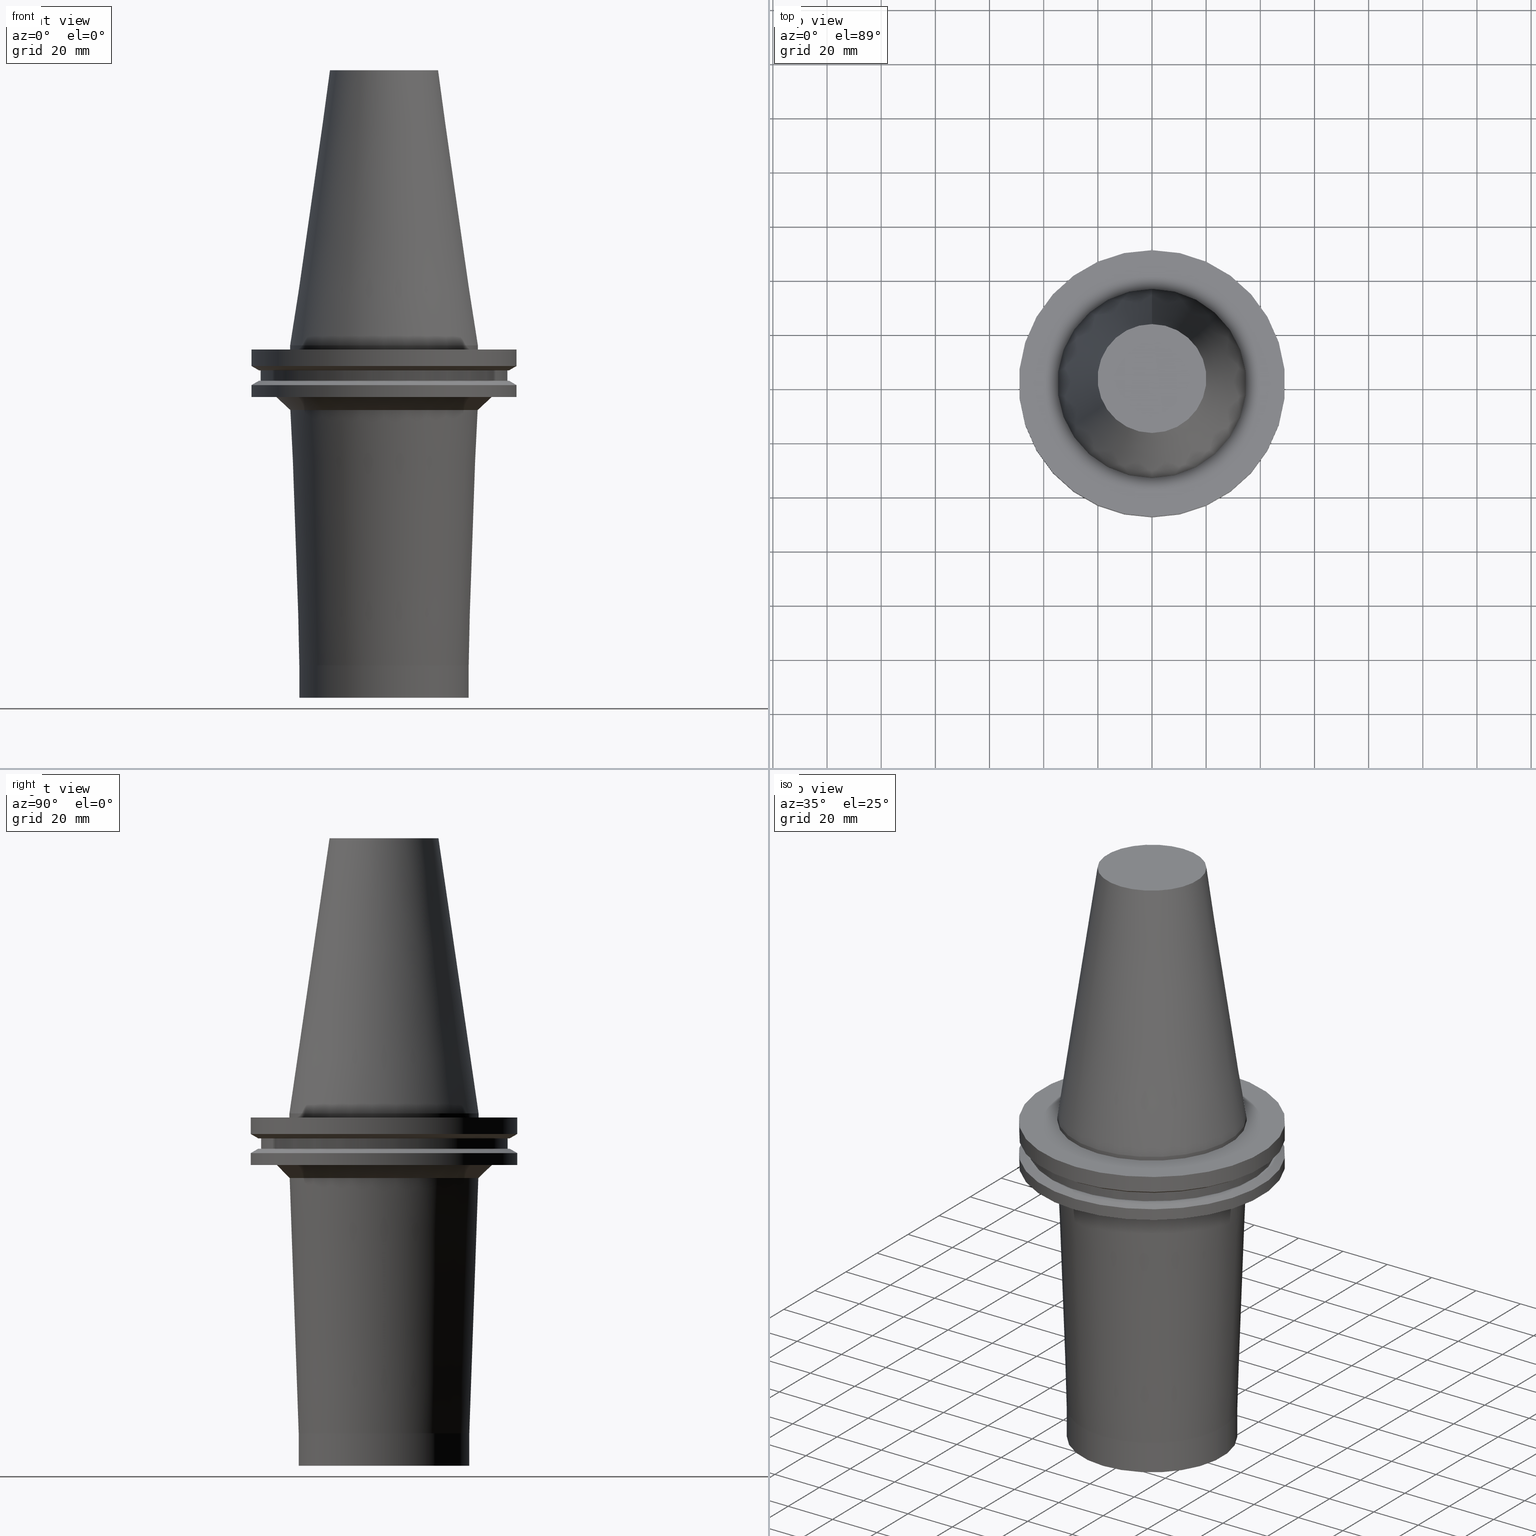
[diagram: canonical four-view strip — front | top / right | iso, engineering-drawing reading convention]
A machine part, canonical four-view strip (front | top / right | iso — engineering-drawing reading convention). The complete STEP part file that produces these views, byte-faithful:
ISO-10303-21;
HEADER;
FILE_DESCRIPTION((''),'1');
FILE_NAME('V:/01_Dxf_Field-HP\X2\FF71FF6FFF8CFF9F5916\X0\2013/BIGKAISER\X2\FF76FF80FF9BFF78FF9E63B28F095206\X0\_BKUS_201803/BCV_Y-F/BCV50Y-F63-5.125.stp','2018-03-13T06:00:51',(''),(''),'Spatial Interop R21 SP3','Kubotek KeyCreator 2011 V10.0.2 (22737)',' ');
FILE_SCHEMA(('automotive_design'));
ENDSEC;
DATA;
#1=MECHANICAL_DESIGN_GEOMETRIC_PRESENTATION_REPRESENTATION(' ',(#10,#11,#12,#13,#14,#15,#16,#17,#18,#19,#20,#21,#22,#23,#24,#25,#26,#27,#28,#29,#30,#31,#32,#33,#34,#35,#36,#37,#38,#39,#40,#41),#6);
#2=PRODUCT_DEFINITION_CONTEXT('',#42,'design');
#3=APPLICATION_PROTOCOL_DEFINITION('INTERNATIONAL STANDARD','automotive_design',1994,#42);
#4=PRODUCT_CATEGORY_RELATIONSHIP('NONE','NONE',#43,#44);
#5=SHAPE_DEFINITION_REPRESENTATION(#45,#46);
#6= (GEOMETRIC_REPRESENTATION_CONTEXT(3)GLOBAL_UNCERTAINTY_ASSIGNED_CONTEXT((#49))GLOBAL_UNIT_ASSIGNED_CONTEXT((#51,#52,#53))REPRESENTATION_CONTEXT('NONE','WORKSPACE'));
#10=STYLED_ITEM('',(#55,#56),#57);
#11=STYLED_ITEM('',(#58),#59);
#12=STYLED_ITEM('',(#60),#61);
#13=STYLED_ITEM('',(#62,#63),#64);
#14=STYLED_ITEM('',(#65,#66),#67);
#15=STYLED_ITEM('',(#68),#69);
#16=STYLED_ITEM('',(#70),#71);
#17=STYLED_ITEM('',(#72),#73);
#18=STYLED_ITEM('',(#74,#75),#76);
#19=STYLED_ITEM('',(#77),#78);
#20=STYLED_ITEM('',(#79),#80);
#21=STYLED_ITEM('',(#81),#82);
#22=STYLED_ITEM('',(#83,#84),#85);
#23=STYLED_ITEM('',(#86,#87),#88);
#24=STYLED_ITEM('',(#89),#90);
#25=STYLED_ITEM('',(#91,#92),#93);
#26=STYLED_ITEM('',(#94,#95),#96);
#27=STYLED_ITEM('',(#97),#98);
#28=STYLED_ITEM('',(#99,#100),#101);
#29=STYLED_ITEM('',(#102,#103),#104);
#30=STYLED_ITEM('',(#105),#106);
#31=STYLED_ITEM('',(#107),#108);
#32=STYLED_ITEM('',(#109,#110),#111);
#33=STYLED_ITEM('',(#112,#113),#114);
#34=STYLED_ITEM('',(#115,#116),#117);
#35=STYLED_ITEM('',(#118),#119);
#36=STYLED_ITEM('',(#120,#121),#122);
#37=STYLED_ITEM('',(#123),#124);
#38=STYLED_ITEM('',(#125,#126),#127);
#39=STYLED_ITEM('',(#128,#129),#130);
#40=STYLED_ITEM('',(#131,#132),#133);
#41=STYLED_ITEM('',(#134),#135);
#42=APPLICATION_CONTEXT(' ');
#43=PRODUCT_CATEGORY('part','NONE');
#44=PRODUCT_RELATED_PRODUCT_CATEGORY('detail',' ',(#136));
#45=PRODUCT_DEFINITION_SHAPE('NONE','NONE',#137);
#46=ADVANCED_BREP_SHAPE_REPRESENTATION('Unnamed[1]',(#127,#138),#6);
#49=UNCERTAINTY_MEASURE_WITH_UNIT(LENGTH_MEASURE(1.0E-006),#51,'','');
#51= (CONVERSION_BASED_UNIT('MILLIMETRE',#141)LENGTH_UNIT()NAMED_UNIT(#144));
#52= (NAMED_UNIT(#146)PLANE_ANGLE_UNIT()SI_UNIT($,.RADIAN.));
#53= (NAMED_UNIT(#146)SOLID_ANGLE_UNIT()SI_UNIT($,.STERADIAN.));
#55=PRESENTATION_STYLE_ASSIGNMENT((#152));
#56=PRESENTATION_STYLE_ASSIGNMENT((#153));
#57=ADVANCED_FACE('Unnamed[1]',(#154,#155),#156,.T.);
#58=PRESENTATION_STYLE_ASSIGNMENT((#157));
#59=EDGE_CURVE('Unnamed[1]',#158,#158,#159,.T.);
#60=PRESENTATION_STYLE_ASSIGNMENT((#160));
#61=EDGE_CURVE('Unnamed[1]',#161,#161,#162,.T.);
#62=PRESENTATION_STYLE_ASSIGNMENT((#163));
#63=PRESENTATION_STYLE_ASSIGNMENT((#164));
#64=ADVANCED_FACE('Unnamed[1]',(#165),#166,.T.);
#65=PRESENTATION_STYLE_ASSIGNMENT((#167));
#66=PRESENTATION_STYLE_ASSIGNMENT((#168));
#67=ADVANCED_FACE('Unnamed[1]',(#169,#170),#171,.T.);
#68=PRESENTATION_STYLE_ASSIGNMENT((#172));
#69=EDGE_CURVE('Unnamed[1]',#173,#173,#174,.T.);
#70=PRESENTATION_STYLE_ASSIGNMENT((#175));
#71=EDGE_CURVE('Unnamed[1]',#176,#176,#177,.T.);
#72=PRESENTATION_STYLE_ASSIGNMENT((#178));
#73=EDGE_CURVE('Unnamed[1]',#179,#179,#180,.T.);
#74=PRESENTATION_STYLE_ASSIGNMENT((#181));
#75=PRESENTATION_STYLE_ASSIGNMENT((#182));
#76=ADVANCED_FACE('Unnamed[1]',(#183,#184),#185,.T.);
#77=PRESENTATION_STYLE_ASSIGNMENT((#186));
#78=EDGE_CURVE('Unnamed[1]',#187,#187,#188,.T.);
#79=PRESENTATION_STYLE_ASSIGNMENT((#189));
#80=EDGE_CURVE('Unnamed[1]',#190,#190,#191,.T.);
#81=PRESENTATION_STYLE_ASSIGNMENT((#192));
#82=EDGE_CURVE('Unnamed[1]',#193,#193,#194,.T.);
#83=PRESENTATION_STYLE_ASSIGNMENT((#195));
#84=PRESENTATION_STYLE_ASSIGNMENT((#196));
#85=ADVANCED_FACE('Unnamed[1]',(#197,#198),#199,.T.);
#86=PRESENTATION_STYLE_ASSIGNMENT((#200));
#87=PRESENTATION_STYLE_ASSIGNMENT((#201));
#88=ADVANCED_FACE('Unnamed[1]',(#202,#203),#204,.T.);
#89=PRESENTATION_STYLE_ASSIGNMENT((#205));
#90=EDGE_CURVE('Unnamed[1]',#206,#206,#207,.T.);
#91=PRESENTATION_STYLE_ASSIGNMENT((#208));
#92=PRESENTATION_STYLE_ASSIGNMENT((#209));
#93=ADVANCED_FACE('Unnamed[1]',(#210,#211),#212,.T.);
#94=PRESENTATION_STYLE_ASSIGNMENT((#213));
#95=PRESENTATION_STYLE_ASSIGNMENT((#214));
#96=ADVANCED_FACE('Unnamed[1]',(#215,#216),#217,.T.);
#97=PRESENTATION_STYLE_ASSIGNMENT((#218));
#98=EDGE_CURVE('Unnamed[1]',#219,#219,#220,.T.);
#99=PRESENTATION_STYLE_ASSIGNMENT((#221));
#100=PRESENTATION_STYLE_ASSIGNMENT((#222));
#101=ADVANCED_FACE('Unnamed[1]',(#223),#224,.T.);
#102=PRESENTATION_STYLE_ASSIGNMENT((#225));
#103=PRESENTATION_STYLE_ASSIGNMENT((#226));
#104=ADVANCED_FACE('Unnamed[1]',(#227,#228),#229,.T.);
#105=PRESENTATION_STYLE_ASSIGNMENT((#230));
#106=EDGE_CURVE('Unnamed[1]',#231,#231,#232,.T.);
#107=PRESENTATION_STYLE_ASSIGNMENT((#233));
#108=EDGE_CURVE('Unnamed[1]',#234,#234,#235,.T.);
#109=PRESENTATION_STYLE_ASSIGNMENT((#236));
#110=PRESENTATION_STYLE_ASSIGNMENT((#237));
#111=ADVANCED_FACE('Unnamed[1]',(#238,#239),#240,.T.);
#112=PRESENTATION_STYLE_ASSIGNMENT((#241));
#113=PRESENTATION_STYLE_ASSIGNMENT((#242));
#114=ADVANCED_FACE('Unnamed[1]',(#243,#244),#245,.T.);
#115=PRESENTATION_STYLE_ASSIGNMENT((#246));
#116=PRESENTATION_STYLE_ASSIGNMENT((#247));
#117=ADVANCED_FACE('Unnamed[1]',(#248,#249),#250,.T.);
#118=PRESENTATION_STYLE_ASSIGNMENT((#251));
#119=EDGE_CURVE('Unnamed[1]',#252,#252,#253,.T.);
#120=PRESENTATION_STYLE_ASSIGNMENT((#254));
#121=PRESENTATION_STYLE_ASSIGNMENT((#255));
#122=ADVANCED_FACE('Unnamed[1]',(#256,#257),#258,.T.);
#123=PRESENTATION_STYLE_ASSIGNMENT((#259));
#124=EDGE_CURVE('Unnamed[1]',#260,#260,#261,.T.);
#125=PRESENTATION_STYLE_ASSIGNMENT((#262));
#126=PRESENTATION_STYLE_ASSIGNMENT((#263));
#127=MANIFOLD_SOLID_BREP('Unnamed[1]',#264);
#128=PRESENTATION_STYLE_ASSIGNMENT((#265));
#129=PRESENTATION_STYLE_ASSIGNMENT((#266));
#130=ADVANCED_FACE('Unnamed[1]',(#267,#268),#269,.T.);
#131=PRESENTATION_STYLE_ASSIGNMENT((#270));
#132=PRESENTATION_STYLE_ASSIGNMENT((#271));
#133=ADVANCED_FACE('Unnamed[1]',(#272,#273),#274,.T.);
#134=PRESENTATION_STYLE_ASSIGNMENT((#275));
#135=EDGE_CURVE('Unnamed[1]',#276,#276,#277,.T.);
#136=PRODUCT('Unnamed[1]','Unnamed[1]','PART-Unnamed[1]-DESC',(#278));
#137=PRODUCT_DEFINITION('NONE','NONE',#279,#2);
#138=AXIS2_PLACEMENT_3D('',#280,#281,#282);
#141=LENGTH_MEASURE_WITH_UNIT(LENGTH_MEASURE(1.0),#283);
#144=DIMENSIONAL_EXPONENTS(1.0,0.0,0.0,0.0,0.0,0.0,0.0);
#146=DIMENSIONAL_EXPONENTS(0.0,0.0,0.0,0.0,0.0,0.0,0.0);
#152=SURFACE_STYLE_USAGE(.BOTH.,#284);
#153=CURVE_STYLE('',#285,POSITIVE_LENGTH_MEASURE(1000.0),#286);
#154=FACE_BOUND('',#287,.T.);
#155=FACE_BOUND('',#288,.T.);
#156=CYLINDRICAL_SURFACE('',#289,34.925);
#157=CURVE_STYLE('',#290,POSITIVE_LENGTH_MEASURE(1000.0),#291);
#158=VERTEX_POINT('',#292);
#159=CIRCLE('',#293,34.8299076510828);
#160=CURVE_STYLE('',#294,POSITIVE_LENGTH_MEASURE(1000.0),#295);
#161=VERTEX_POINT('',#296);
#162=CIRCLE('',#297,34.925);
#163=SURFACE_STYLE_USAGE(.BOTH.,#298);
#164=CURVE_STYLE('',#299,POSITIVE_LENGTH_MEASURE(1000.0),#300);
#165=FACE_OUTER_BOUND('',#301,.T.);
#166=PLANE('',#302);
#167=SURFACE_STYLE_USAGE(.BOTH.,#303);
#168=CURVE_STYLE('',#304,POSITIVE_LENGTH_MEASURE(1000.0),#305);
#169=FACE_BOUND('',#306,.T.);
#170=FACE_BOUND('',#307,.T.);
#171=CONICAL_SURFACE('',#308,37.3374018589758,0.804867869938261);
#172=CURVE_STYLE('',#309,POSITIVE_LENGTH_MEASURE(1000.0),#310);
#173=VERTEX_POINT('',#311);
#174=CIRCLE('',#312,46.43053755);
#175=CURVE_STYLE('',#313,POSITIVE_LENGTH_MEASURE(1000.0),#314);
#176=VERTEX_POINT('',#315);
#177=CIRCLE('',#316,45.645);
#178=CURVE_STYLE('',#317,POSITIVE_LENGTH_MEASURE(1000.0),#318);
#179=VERTEX_POINT('',#319);
#180=CIRCLE('',#320,31.4999999999999);
#181=SURFACE_STYLE_USAGE(.BOTH.,#321);
#182=CURVE_STYLE('',#322,POSITIVE_LENGTH_MEASURE(1000.0),#323);
#183=FACE_BOUND('',#324,.T.);
#184=FACE_BOUND('',#325,.T.);
#185=CONICAL_SURFACE('',#326,47.821518775,1.04719755103024);
#186=CURVE_STYLE('',#327,POSITIVE_LENGTH_MEASURE(1000.0),#328);
#187=VERTEX_POINT('',#329);
#188=CIRCLE('',#330,46.43053755);
#189=CURVE_STYLE('',#331,POSITIVE_LENGTH_MEASURE(1000.0),#332);
#190=VERTEX_POINT('',#333);
#191=CIRCLE('',#334,49.2125);
#192=CURVE_STYLE('',#335,POSITIVE_LENGTH_MEASURE(1000.0),#336);
#193=VERTEX_POINT('',#337);
#194=CIRCLE('',#338,45.645);
#195=SURFACE_STYLE_USAGE(.BOTH.,#339);
#196=CURVE_STYLE('',#340,POSITIVE_LENGTH_MEASURE(1000.0),#341);
#197=FACE_OUTER_BOUND('',#342,.T.);
#198=FACE_BOUND('',#343,.T.);
#199=PLANE('',#344);
#200=SURFACE_STYLE_USAGE(.BOTH.,#345);
#201=CURVE_STYLE('',#346,POSITIVE_LENGTH_MEASURE(1000.0),#347);
#202=FACE_BOUND('',#348,.T.);
#203=FACE_BOUND('',#349,.T.);
#204=CYLINDRICAL_SURFACE('',#350,31.4999999999999);
#205=CURVE_STYLE('',#351,POSITIVE_LENGTH_MEASURE(1000.0),#352);
#206=VERTEX_POINT('',#353);
#207=CIRCLE('',#354,31.5);
#208=SURFACE_STYLE_USAGE(.BOTH.,#355);
#209=CURVE_STYLE('',#356,POSITIVE_LENGTH_MEASURE(1000.0),#357);
#210=FACE_BOUND('',#358,.T.);
#211=FACE_BOUND('',#359,.T.);
#212=CONICAL_SURFACE('',#360,47.821518775,1.04719755103023);
#213=SURFACE_STYLE_USAGE(.BOTH.,#361);
#214=CURVE_STYLE('',#362,POSITIVE_LENGTH_MEASURE(1000.0),#363);
#215=FACE_BOUND('',#364,.T.);
#216=FACE_BOUND('',#365,.T.);
#217=CONICAL_SURFACE('',#366,33.1649538255414,0.0353246636794449);
#218=CURVE_STYLE('',#367,POSITIVE_LENGTH_MEASURE(1000.0),#368);
#219=VERTEX_POINT('',#369);
#220=CIRCLE('',#370,34.925);
#221=SURFACE_STYLE_USAGE(.BOTH.,#371);
#222=CURVE_STYLE('',#372,POSITIVE_LENGTH_MEASURE(1000.0),#373);
#223=FACE_OUTER_BOUND('',#374,.T.);
#224=PLANE('',#375);
#225=SURFACE_STYLE_USAGE(.BOTH.,#376);
#226=CURVE_STYLE('',#377,POSITIVE_LENGTH_MEASURE(1000.0),#378);
#227=FACE_BOUND('',#379,.T.);
#228=FACE_BOUND('',#380,.T.);
#229=CYLINDRICAL_SURFACE('',#381,49.2125);
#230=CURVE_STYLE('',#382,POSITIVE_LENGTH_MEASURE(1000.0),#383);
#231=VERTEX_POINT('',#384);
#232=CIRCLE('',#385,20.1083333297217);
#233=CURVE_STYLE('',#386,POSITIVE_LENGTH_MEASURE(1000.0),#387);
#234=VERTEX_POINT('',#388);
#235=CIRCLE('',#389,49.2125);
#236=SURFACE_STYLE_USAGE(.BOTH.,#390);
#237=CURVE_STYLE('',#391,POSITIVE_LENGTH_MEASURE(1000.0),#392);
#238=FACE_BOUND('',#393,.T.);
#239=FACE_BOUND('',#394,.T.);
#240=CYLINDRICAL_SURFACE('',#395,45.645);
#241=SURFACE_STYLE_USAGE(.BOTH.,#396);
#242=CURVE_STYLE('',#397,POSITIVE_LENGTH_MEASURE(1000.0),#398);
#243=FACE_OUTER_BOUND('',#399,.T.);
#244=FACE_BOUND('',#400,.T.);
#245=PLANE('',#401);
#246=SURFACE_STYLE_USAGE(.BOTH.,#402);
#247=CURVE_STYLE('',#403,POSITIVE_LENGTH_MEASURE(1000.0),#404);
#248=FACE_BOUND('',#405,.T.);
#249=FACE_BOUND('',#406,.T.);
#250=CYLINDRICAL_SURFACE('',#407,49.2125);
#251=CURVE_STYLE('',#408,POSITIVE_LENGTH_MEASURE(1000.0),#409);
#252=VERTEX_POINT('',#410);
#253=CIRCLE('',#411,39.8448960668688);
#254=SURFACE_STYLE_USAGE(.BOTH.,#412);
#255=CURVE_STYLE('',#413,POSITIVE_LENGTH_MEASURE(1000.0),#414);
#256=FACE_BOUND('',#415,.T.);
#257=FACE_OUTER_BOUND('',#416,.T.);
#258=PLANE('',#417);
#259=CURVE_STYLE('',#418,POSITIVE_LENGTH_MEASURE(1000.0),#419);
#260=VERTEX_POINT('',#420);
#261=CIRCLE('',#421,49.2125);
#262=SURFACE_STYLE_USAGE(.BOTH.,#422);
#263=CURVE_STYLE('',#423,POSITIVE_LENGTH_MEASURE(1000.0),#424);
#264=CLOSED_SHELL('',(#101,#130,#57,#114,#117,#76,#122,#111,#85,#93,#104,#133,#67,#96,#88,#64));
#265=SURFACE_STYLE_USAGE(.BOTH.,#425);
#266=CURVE_STYLE('',#426,POSITIVE_LENGTH_MEASURE(1000.0),#427);
#267=FACE_BOUND('',#428,.T.);
#268=FACE_BOUND('',#429,.T.);
#269=CONICAL_SURFACE('',#430,27.5166666648608,0.144812498273746);
#270=SURFACE_STYLE_USAGE(.BOTH.,#431);
#271=CURVE_STYLE('',#432,POSITIVE_LENGTH_MEASURE(1000.0),#433);
#272=FACE_BOUND('',#434,.T.);
#273=FACE_OUTER_BOUND('',#435,.T.);
#274=PLANE('',#436);
#275=CURVE_STYLE('',#437,POSITIVE_LENGTH_MEASURE(1000.0),#438);
#276=VERTEX_POINT('',#439);
#277=CIRCLE('',#440,49.2125);
#278=PRODUCT_CONTEXT('',#42,'mechanical');
#279=PRODUCT_DEFINITION_FORMATION_WITH_SPECIFIED_SOURCE(' ','NONE',#136,.NOT_KNOWN.);
#280=CARTESIAN_POINT('',(0.0,0.0,0.0));
#281=DIRECTION('',(0.0,0.0,1.0));
#282=DIRECTION('',(1.0,0.0,0.0));
#283= (NAMED_UNIT(#144)LENGTH_UNIT()SI_UNIT(.MILLI.,.METRE.));
#284=SURFACE_SIDE_STYLE('',(#442));
#285=DRAUGHTING_PRE_DEFINED_CURVE_FONT('continuous');
#286=COLOUR_RGB('',0.0,1.0,0.0);
#287=EDGE_LOOP('',(#443));
#288=EDGE_LOOP('',(#444));
#289=AXIS2_PLACEMENT_3D('',#445,#446,#447);
#290=DRAUGHTING_PRE_DEFINED_CURVE_FONT('continuous');
#291=COLOUR_RGB('',0.0,1.0,0.0);
#292=CARTESIAN_POINT('',(1.46182496598705E-015,34.8299076510828,-23.8734134120112));
#293=AXIS2_PLACEMENT_3D('',#448,#449,#450);
#294=DRAUGHTING_PRE_DEFINED_CURVE_FONT('continuous');
#295=COLOUR_RGB('',0.0,1.0,0.0);
#296=CARTESIAN_POINT('',(9.18485099360511E-017,34.925,-1.5));
#297=AXIS2_PLACEMENT_3D('',#451,#452,#453);
#298=SURFACE_SIDE_STYLE('',(#454));
#299=DRAUGHTING_PRE_DEFINED_CURVE_FONT('continuous');
#300=COLOUR_RGB('',0.0,1.0,0.0);
#301=EDGE_LOOP('',(#455));
#302=AXIS2_PLACEMENT_3D('',#456,#457,#458);
#303=SURFACE_SIDE_STYLE('',(#459));
#304=DRAUGHTING_PRE_DEFINED_CURVE_FONT('continuous');
#305=COLOUR_RGB('',0.0,1.0,0.0);
#306=EDGE_LOOP('',(#460));
#307=EDGE_LOOP('',(#461));
#308=AXIS2_PLACEMENT_3D('',#462,#463,#464);
#309=DRAUGHTING_PRE_DEFINED_CURVE_FONT('continuous');
#310=COLOUR_RGB('',0.0,1.0,0.0);
#311=CARTESIAN_POINT('',(5.63337527607782E-016,46.43053755,-9.2));
#312=AXIS2_PLACEMENT_3D('',#465,#466,#467);
#313=DRAUGHTING_PRE_DEFINED_CURVE_FONT('continuous');
#314=COLOUR_RGB('',0.0,1.0,0.0);
#315=CARTESIAN_POINT('',(7.98469713044073E-016,45.645,-13.04));
#316=AXIS2_PLACEMENT_3D('',#468,#469,#470);
#317=DRAUGHTING_PRE_DEFINED_CURVE_FONT('continuous');
#318=COLOUR_RGB('',0.0,1.0,0.0);
#319=CARTESIAN_POINT('',(7.96632742845342E-015,31.4999999999999,-130.099999999998));
#320=AXIS2_PLACEMENT_3D('',#471,#472,#473);
#321=SURFACE_SIDE_STYLE('',(#474));
#322=DRAUGHTING_PRE_DEFINED_CURVE_FONT('continuous');
#323=COLOUR_RGB('',0.0,1.0,0.0);
#324=EDGE_LOOP('',(#475));
#325=EDGE_LOOP('',(#476));
#326=AXIS2_PLACEMENT_3D('',#477,#478,#479);
#327=DRAUGHTING_PRE_DEFINED_CURVE_FONT('continuous');
#328=COLOUR_RGB('',0.0,1.0,0.0);
#329=CARTESIAN_POINT('',(7.98469713044073E-016,46.43053755,-13.04));
#330=AXIS2_PLACEMENT_3D('',#480,#481,#482);
#331=DRAUGHTING_PRE_DEFINED_CURVE_FONT('continuous');
#332=COLOUR_RGB('',0.0,1.0,0.0);
#333=CARTESIAN_POINT('',(1.16647607618785E-015,49.2125,-19.05));
#334=AXIS2_PLACEMENT_3D('',#483,#484,#485);
#335=DRAUGHTING_PRE_DEFINED_CURVE_FONT('continuous');
#336=COLOUR_RGB('',0.0,1.0,0.0);
#337=CARTESIAN_POINT('',(5.63337527607782E-016,45.645,-9.2));
#338=AXIS2_PLACEMENT_3D('',#486,#487,#488);
#339=SURFACE_SIDE_STYLE('',(#489));
#340=DRAUGHTING_PRE_DEFINED_CURVE_FONT('continuous');
#341=COLOUR_RGB('',0.0,1.0,0.0);
#342=EDGE_LOOP('',(#490));
#343=EDGE_LOOP('',(#491));
#344=AXIS2_PLACEMENT_3D('',#492,#493,#494);
#345=SURFACE_SIDE_STYLE('',(#495));
#346=DRAUGHTING_PRE_DEFINED_CURVE_FONT('continuous');
#347=COLOUR_RGB('',0.0,1.0,0.0);
#348=EDGE_LOOP('',(#496));
#349=EDGE_LOOP('',(#497));
#350=AXIS2_PLACEMENT_3D('',#498,#499,#500);
#351=DRAUGHTING_PRE_DEFINED_CURVE_FONT('continuous');
#352=COLOUR_RGB('',0.0,1.0,0.0);
#353=CARTESIAN_POINT('',(7.23153934897916E-015,31.4999999999999,-118.100000000229));
#354=AXIS2_PLACEMENT_3D('',#501,#502,#503);
#355=SURFACE_SIDE_STYLE('',(#504));
#356=DRAUGHTING_PRE_DEFINED_CURVE_FONT('continuous');
#357=COLOUR_RGB('',0.0,1.0,0.0);
#358=EDGE_LOOP('',(#505));
#359=EDGE_LOOP('',(#506));
#360=AXIS2_PLACEMENT_3D('',#507,#508,#509);
#361=SURFACE_SIDE_STYLE('',(#510));
#362=DRAUGHTING_PRE_DEFINED_CURVE_FONT('continuous');
#363=COLOUR_RGB('',0.0,1.0,0.0);
#364=EDGE_LOOP('',(#511));
#365=EDGE_LOOP('',(#512));
#366=AXIS2_PLACEMENT_3D('',#513,#514,#515);
#367=DRAUGHTING_PRE_DEFINED_CURVE_FONT('continuous');
#368=COLOUR_RGB('',0.0,1.0,0.0);
#369=CARTESIAN_POINT('',(-4.30483861169435E-031,34.925,4.27707894602213E-015));
#370=AXIS2_PLACEMENT_3D('',#516,#517,#518);
#371=SURFACE_SIDE_STYLE('',(#519));
#372=DRAUGHTING_PRE_DEFINED_CURVE_FONT('continuous');
#373=COLOUR_RGB('',0.0,1.0,0.0);
#374=EDGE_LOOP('',(#520));
#375=AXIS2_PLACEMENT_3D('',#521,#522,#523);
#376=SURFACE_SIDE_STYLE('',(#524));
#377=DRAUGHTING_PRE_DEFINED_CURVE_FONT('continuous');
#378=COLOUR_RGB('',0.0,1.0,0.0);
#379=EDGE_LOOP('',(#525));
#380=EDGE_LOOP('',(#526));
#381=AXIS2_PLACEMENT_3D('',#527,#528,#529);
#382=DRAUGHTING_PRE_DEFINED_CURVE_FONT('continuous');
#383=COLOUR_RGB('',0.0,1.0,0.0);
#384=CARTESIAN_POINT('',(-6.22120573966855E-015,20.1083333297217,101.6));
#385=AXIS2_PLACEMENT_3D('',#530,#531,#532);
#386=DRAUGHTING_PRE_DEFINED_CURVE_FONT('continuous');
#387=COLOUR_RGB('',0.0,1.0,0.0);
#388=CARTESIAN_POINT('',(8.96819062732941E-016,49.2125,-14.64616677));
#389=AXIS2_PLACEMENT_3D('',#533,#534,#535);
#390=SURFACE_SIDE_STYLE('',(#536));
#391=DRAUGHTING_PRE_DEFINED_CURVE_FONT('continuous');
#392=COLOUR_RGB('',0.0,1.0,0.0);
#393=EDGE_LOOP('',(#537));
#394=EDGE_LOOP('',(#538));
#395=AXIS2_PLACEMENT_3D('',#539,#540,#541);
#396=SURFACE_SIDE_STYLE('',(#542));
#397=DRAUGHTING_PRE_DEFINED_CURVE_FONT('continuous');
#398=COLOUR_RGB('',0.0,1.0,0.0);
#399=EDGE_LOOP('',(#543));
#400=EDGE_LOOP('',(#544));
#401=AXIS2_PLACEMENT_3D('',#545,#546,#547);
#402=SURFACE_SIDE_STYLE('',(#548));
#403=DRAUGHTING_PRE_DEFINED_CURVE_FONT('continuous');
#404=COLOUR_RGB('',0.0,1.0,0.0);
#405=EDGE_LOOP('',(#549));
#406=EDGE_LOOP('',(#550));
#407=AXIS2_PLACEMENT_3D('',#551,#552,#553);
#408=DRAUGHTING_PRE_DEFINED_CURVE_FONT('continuous');
#409=COLOUR_RGB('',0.0,1.0,0.0);
#410=CARTESIAN_POINT('',(1.16647607618785E-015,39.8448960668688,-19.05));
#411=AXIS2_PLACEMENT_3D('',#554,#555,#556);
#412=SURFACE_SIDE_STYLE('',(#557));
#413=DRAUGHTING_PRE_DEFINED_CURVE_FONT('continuous');
#414=COLOUR_RGB('',0.0,1.0,0.0);
#415=EDGE_LOOP('',(#558));
#416=EDGE_LOOP('',(#559));
#417=AXIS2_PLACEMENT_3D('',#560,#561,#562);
#418=DRAUGHTING_PRE_DEFINED_CURVE_FONT('continuous');
#419=COLOUR_RGB('',0.0,1.0,0.0);
#420=CARTESIAN_POINT('',(4.64988177918915E-016,49.2125,-7.59383323));
#421=AXIS2_PLACEMENT_3D('',#563,#564,#565);
#422=SURFACE_SIDE_STYLE('',(#566));
#423=DRAUGHTING_PRE_DEFINED_CURVE_FONT('continuous');
#424=COLOUR_RGB('',0.0,1.0,0.0);
#425=SURFACE_SIDE_STYLE('',(#567));
#426=DRAUGHTING_PRE_DEFINED_CURVE_FONT('continuous');
#427=COLOUR_RGB('',0.0,1.0,0.0);
#428=EDGE_LOOP('',(#568));
#429=EDGE_LOOP('',(#569));
#430=AXIS2_PLACEMENT_3D('',#570,#571,#572);
#431=SURFACE_SIDE_STYLE('',(#573));
#432=DRAUGHTING_PRE_DEFINED_CURVE_FONT('continuous');
#433=COLOUR_RGB('',0.0,1.0,0.0);
#434=EDGE_LOOP('',(#574));
#435=EDGE_LOOP('',(#575));
#436=AXIS2_PLACEMENT_3D('',#576,#577,#578);
#437=DRAUGHTING_PRE_DEFINED_CURVE_FONT('continuous');
#438=COLOUR_RGB('',0.0,1.0,0.0);
#439=CARTESIAN_POINT('',(9.18485099360509E-017,49.2125,-1.49999999999999));
#440=AXIS2_PLACEMENT_3D('',#579,#580,#581);
#442=SURFACE_STYLE_FILL_AREA(#582);
#443=ORIENTED_EDGE('',*,*,#61,.F.);
#444=ORIENTED_EDGE('',*,*,#98,.T.);
#445=CARTESIAN_POINT('',(4.59242549680257E-017,-8.32280157438099E-015,-0.75));
#446=DIRECTION('',(6.12323399573676E-017,-1.22476298162836E-016,-1.0));
#447=DIRECTION('',(2.6723575950577E-033,1.0,-1.22476298162836E-016));
#448=CARTESIAN_POINT('',(1.46182496598705E-015,-1.1154871649973E-014,-23.8734134120111));
#449=DIRECTION('',(6.12323399573677E-017,-1.22476298162836E-016,-1.0));
#450=DIRECTION('',(2.6723575950577E-033,1.0,-1.22476298162836E-016));
#451=CARTESIAN_POINT('',(9.18485099360515E-017,-8.41465879800311E-015,-1.5));
#452=DIRECTION('',(6.12323399573676E-017,-1.22476298162836E-016,-1.0));
#453=DIRECTION('',(2.6723575950577E-033,1.0,-1.22476298162836E-016));
#454=SURFACE_STYLE_FILL_AREA(#583);
#455=ORIENTED_EDGE('',*,*,#73,.T.);
#456=CARTESIAN_POINT('',(7.96632742846008E-015,15.7499999999999,-130.100000000107));
#457=DIRECTION('',(6.12323399573677E-017,6.90614671802318E-012,-1.0));
#458=DIRECTION('',(-4.22884350786185E-028,1.0,6.90614671802318E-012));
#459=SURFACE_STYLE_FILL_AREA(#584);
#460=ORIENTED_EDGE('',*,*,#59,.F.);
#461=ORIENTED_EDGE('',*,*,#119,.T.);
#462=CARTESIAN_POINT('',(1.31415052108745E-015,-1.08594947403669E-014,-21.4617067060056));
#463=DIRECTION('',(-6.12323399573677E-017,1.22476298162836E-016,1.0));
#464=DIRECTION('',(2.6723575950577E-033,1.0,-1.22476298162836E-016));
#465=CARTESIAN_POINT('',(5.63337527607782E-016,-9.35772629385696E-015,-9.19999999999999));
#466=DIRECTION('',(6.12323399573677E-017,-1.22476298162836E-016,-1.0));
#467=DIRECTION('',(2.6723575950577E-033,1.0,-1.22476298162836E-016));
#468=CARTESIAN_POINT('',(7.98469713044073E-016,-9.82803527880224E-015,-13.04));
#469=DIRECTION('',(6.12323399573677E-017,-1.22476298162836E-016,-1.0));
#470=DIRECTION('',(2.6723575950577E-033,1.0,-1.22476298162836E-016));
#471=CARTESIAN_POINT('',(7.96632742845342E-015,-2.41651107417437E-014,-130.099999999998));
#472=DIRECTION('',(6.12323399573677E-017,-1.22476298162836E-016,-1.0));
#473=DIRECTION('',(2.6723575950577E-033,1.0,-1.22476298162836E-016));
#474=SURFACE_STYLE_FILL_AREA(#585);
#475=ORIENTED_EDGE('',*,*,#69,.F.);
#476=ORIENTED_EDGE('',*,*,#124,.T.);
#477=CARTESIAN_POINT('',(5.14162852763349E-016,-9.25936761374608E-015,-8.396916615));
#478=DIRECTION('',(-6.12323399573677E-017,1.22476298162836E-016,1.0));
#479=DIRECTION('',(2.6723575950577E-033,1.0,-1.22476298162836E-016));
#480=CARTESIAN_POINT('',(7.98469713044073E-016,-9.82803527880224E-015,-13.04));
#481=DIRECTION('',(6.12323399573677E-017,-1.22476298162836E-016,-1.0));
#482=DIRECTION('',(2.6723575950577E-033,1.0,-1.22476298162836E-016));
#483=CARTESIAN_POINT('',(1.16647607618785E-015,-1.05641178307609E-014,-19.05));
#484=DIRECTION('',(6.12323399573676E-017,-1.22476298162836E-016,-1.0));
#485=DIRECTION('',(2.6723575950577E-033,1.0,-1.22476298162836E-016));
#486=CARTESIAN_POINT('',(5.63337527607782E-016,-9.35772629385696E-015,-9.19999999999999));
#487=DIRECTION('',(6.12323399573677E-017,-1.22476298162836E-016,-1.0));
#488=DIRECTION('',(2.6723575950577E-033,1.0,-1.22476298162836E-016));
#489=SURFACE_STYLE_FILL_AREA(#586);
#490=ORIENTED_EDGE('',*,*,#78,.F.);
#491=ORIENTED_EDGE('',*,*,#71,.T.);
#492=CARTESIAN_POINT('',(7.98469713044073E-016,46.037768775,-13.04));
#493=DIRECTION('',(-6.12323399573677E-017,-1.22464679914735E-016,1.0));
#494=DIRECTION('',(1.23259516440783E-032,-1.0,-1.22464679914735E-016));
#495=SURFACE_STYLE_FILL_AREA(#587);
#496=ORIENTED_EDGE('',*,*,#73,.F.);
#497=ORIENTED_EDGE('',*,*,#90,.T.);
#498=CARTESIAN_POINT('',(7.59893338871629E-015,-2.34302529527808E-014,-124.100000000114));
#499=DIRECTION('',(6.12323399573677E-017,-1.22476298162836E-016,-1.0));
#500=DIRECTION('',(2.6723575950577E-033,1.0,-1.22476298162836E-016));
#501=CARTESIAN_POINT('',(7.23153934897916E-015,-2.26953951638179E-014,-118.100000000229));
#502=DIRECTION('',(6.12323399573676E-017,-1.22476298162836E-016,-1.0));
#503=DIRECTION('',(2.6723575950577E-033,1.0,-1.22476298162836E-016));
#504=SURFACE_STYLE_FILL_AREA(#588);
#505=ORIENTED_EDGE('',*,*,#108,.F.);
#506=ORIENTED_EDGE('',*,*,#78,.T.);
#507=CARTESIAN_POINT('',(8.47644387888507E-016,-9.92639395891313E-015,-13.843083385));
#508=DIRECTION('',(6.12323399573677E-017,-1.22476298162836E-016,-1.0));
#509=DIRECTION('',(2.6723575950577E-033,1.0,-1.22476298162836E-016));
#510=SURFACE_STYLE_FILL_AREA(#589);
#511=ORIENTED_EDGE('',*,*,#90,.F.);
#512=ORIENTED_EDGE('',*,*,#59,.T.);
#513=CARTESIAN_POINT('',(4.3466821574831E-015,-1.69251334068955E-014,-70.9867067061202));
#514=DIRECTION('',(-6.12323399573676E-017,1.22476298162836E-016,1.0));
#515=DIRECTION('',(2.6723575950577E-033,1.0,-1.22476298162836E-016));
#516=CARTESIAN_POINT('',(1.01454222052553E-046,-8.23094435075886E-015,-1.00799996531168E-030));
#517=DIRECTION('',(6.12323399573676E-017,-1.22476298162836E-016,-1.0));
#518=DIRECTION('',(2.6723575950577E-033,1.0,-1.22476298162836E-016));
#519=SURFACE_STYLE_FILL_AREA(#590);
#520=ORIENTED_EDGE('',*,*,#106,.F.);
#521=CARTESIAN_POINT('',(-6.22120573966855E-015,10.0541666648608,101.6));
#522=DIRECTION('',(-6.12323399573677E-017,-1.22464679914735E-016,1.0));
#523=DIRECTION('',(1.23259516440783E-032,-1.0,-1.22464679914735E-016));
#524=SURFACE_STYLE_FILL_AREA(#591);
#525=ORIENTED_EDGE('',*,*,#80,.F.);
#526=ORIENTED_EDGE('',*,*,#108,.T.);
#527=CARTESIAN_POINT('',(1.0316475694604E-015,-1.02944352348925E-014,-16.848083385));
#528=DIRECTION('',(6.12323399573676E-017,-1.22476298162836E-016,-1.0));
#529=DIRECTION('',(2.6723575950577E-033,1.0,-1.22476298162836E-016));
#530=CARTESIAN_POINT('',(-6.22120573966855E-015,4.21264754258532E-015,101.6));
#531=DIRECTION('',(6.12323399573677E-017,-1.22476298162836E-016,-1.0));
#532=DIRECTION('',(2.6723575950577E-033,1.0,-1.22476298162836E-016));
#533=CARTESIAN_POINT('',(8.96819062732941E-016,-1.0024752639024E-014,-14.64616677));
#534=DIRECTION('',(6.12323399573676E-017,-1.22476298162836E-016,-1.0));
#535=DIRECTION('',(2.6723575950577E-033,1.0,-1.22476298162836E-016));
#536=SURFACE_STYLE_FILL_AREA(#592);
#537=ORIENTED_EDGE('',*,*,#71,.F.);
#538=ORIENTED_EDGE('',*,*,#82,.T.);
#539=CARTESIAN_POINT('',(6.80903620325928E-016,-9.5928807863296E-015,-11.12));
#540=DIRECTION('',(6.12323399573677E-017,-1.22476298162836E-016,-1.0));
#541=DIRECTION('',(2.6723575950577E-033,1.0,-1.22476298162836E-016));
#542=SURFACE_STYLE_FILL_AREA(#593);
#543=ORIENTED_EDGE('',*,*,#135,.F.);
#544=ORIENTED_EDGE('',*,*,#61,.T.);
#545=CARTESIAN_POINT('',(9.1848509936051E-017,42.06875,-1.49999999999999));
#546=DIRECTION('',(-6.12323399573677E-017,-1.22464679914735E-016,1.0));
#547=DIRECTION('',(1.23259516440783E-032,-1.0,-1.22464679914735E-016));
#548=SURFACE_STYLE_FILL_AREA(#594);
#549=ORIENTED_EDGE('',*,*,#124,.F.);
#550=ORIENTED_EDGE('',*,*,#135,.T.);
#551=CARTESIAN_POINT('',(2.78418343927483E-016,-8.78783386581915E-015,-4.54691661499999));
#552=DIRECTION('',(6.12323399573677E-017,-1.22476298162836E-016,-1.0));
#553=DIRECTION('',(2.6723575950577E-033,1.0,-1.22476298162836E-016));
#554=CARTESIAN_POINT('',(1.16647607618785E-015,-1.05641178307609E-014,-19.05));
#555=DIRECTION('',(6.12323399573677E-017,-1.22476298162836E-016,-1.0));
#556=DIRECTION('',(2.6723575950577E-033,1.0,-1.22476298162836E-016));
#557=SURFACE_STYLE_FILL_AREA(#595);
#558=ORIENTED_EDGE('',*,*,#82,.F.);
#559=ORIENTED_EDGE('',*,*,#69,.T.);
#560=CARTESIAN_POINT('',(5.63337527607782E-016,46.037768775,-9.2));
#561=DIRECTION('',(6.12323399573677E-017,1.22464679914735E-016,-1.0));
#562=DIRECTION('',(-1.23259516440783E-032,1.0,1.22464679914735E-016));
#563=CARTESIAN_POINT('',(4.64988177918915E-016,-9.16100893363519E-015,-7.59383322999999));
#564=DIRECTION('',(6.12323399573677E-017,-1.22476298162836E-016,-1.0));
#565=DIRECTION('',(2.6723575950577E-033,1.0,-1.22476298162836E-016));
#566=SURFACE_STYLE_FILL_AREA(#596);
#567=SURFACE_STYLE_FILL_AREA(#597);
#568=ORIENTED_EDGE('',*,*,#98,.F.);
#569=ORIENTED_EDGE('',*,*,#106,.T.);
#570=CARTESIAN_POINT('',(-3.11060286983428E-015,-2.00914840408677E-015,50.8));
#571=DIRECTION('',(6.12323399573677E-017,-1.22476298162836E-016,-1.0));
#572=DIRECTION('',(2.6723575950577E-033,1.0,-1.22476298162836E-016));
#573=SURFACE_STYLE_FILL_AREA(#598);
#574=ORIENTED_EDGE('',*,*,#119,.F.);
#575=ORIENTED_EDGE('',*,*,#80,.T.);
#576=CARTESIAN_POINT('',(1.16647607618785E-015,44.5286980334344,-19.05));
#577=DIRECTION('',(6.12323399573677E-017,1.22464679914735E-016,-1.0));
#578=DIRECTION('',(-1.23259516440783E-032,1.0,1.22464679914735E-016));
#579=CARTESIAN_POINT('',(9.18485099360515E-017,-8.41465879800311E-015,-1.5));
#580=DIRECTION('',(6.12323399573677E-017,-1.22476298162836E-016,-1.0));
#581=DIRECTION('',(2.6723575950577E-033,1.0,-1.22476298162836E-016));
#582=FILL_AREA_STYLE('',(#599));
#583=FILL_AREA_STYLE('',(#600));
#584=FILL_AREA_STYLE('',(#601));
#585=FILL_AREA_STYLE('',(#602));
#586=FILL_AREA_STYLE('',(#603));
#587=FILL_AREA_STYLE('',(#604));
#588=FILL_AREA_STYLE('',(#605));
#589=FILL_AREA_STYLE('',(#606));
#590=FILL_AREA_STYLE('',(#607));
#591=FILL_AREA_STYLE('',(#608));
#592=FILL_AREA_STYLE('',(#609));
#593=FILL_AREA_STYLE('',(#610));
#594=FILL_AREA_STYLE('',(#611));
#595=FILL_AREA_STYLE('',(#612));
#596=FILL_AREA_STYLE('',(#613));
#597=FILL_AREA_STYLE('',(#614));
#598=FILL_AREA_STYLE('',(#615));
#599=FILL_AREA_STYLE_COLOUR('',#616);
#600=FILL_AREA_STYLE_COLOUR('',#617);
#601=FILL_AREA_STYLE_COLOUR('',#618);
#602=FILL_AREA_STYLE_COLOUR('',#619);
#603=FILL_AREA_STYLE_COLOUR('',#620);
#604=FILL_AREA_STYLE_COLOUR('',#621);
#605=FILL_AREA_STYLE_COLOUR('',#622);
#606=FILL_AREA_STYLE_COLOUR('',#623);
#607=FILL_AREA_STYLE_COLOUR('',#624);
#608=FILL_AREA_STYLE_COLOUR('',#625);
#609=FILL_AREA_STYLE_COLOUR('',#626);
#610=FILL_AREA_STYLE_COLOUR('',#627);
#611=FILL_AREA_STYLE_COLOUR('',#628);
#612=FILL_AREA_STYLE_COLOUR('',#629);
#613=FILL_AREA_STYLE_COLOUR('',#630);
#614=FILL_AREA_STYLE_COLOUR('',#631);
#615=FILL_AREA_STYLE_COLOUR('',#632);
#616=COLOUR_RGB('',0.0,1.0,0.0);
#617=COLOUR_RGB('',0.0,1.0,0.0);
#618=COLOUR_RGB('',0.0,1.0,0.0);
#619=COLOUR_RGB('',0.0,1.0,0.0);
#620=COLOUR_RGB('',0.0,1.0,0.0);
#621=COLOUR_RGB('',0.0,1.0,0.0);
#622=COLOUR_RGB('',0.0,1.0,0.0);
#623=COLOUR_RGB('',0.0,1.0,0.0);
#624=COLOUR_RGB('',0.0,1.0,0.0);
#625=COLOUR_RGB('',0.0,1.0,0.0);
#626=COLOUR_RGB('',0.0,1.0,0.0);
#627=COLOUR_RGB('',0.0,1.0,0.0);
#628=COLOUR_RGB('',0.0,1.0,0.0);
#629=COLOUR_RGB('',0.0,1.0,0.0);
#630=COLOUR_RGB('',0.0,1.0,0.0);
#631=COLOUR_RGB('',0.0,1.0,0.0);
#632=COLOUR_RGB('',0.0,1.0,0.0);
ENDSEC;
END-ISO-10303-21;
